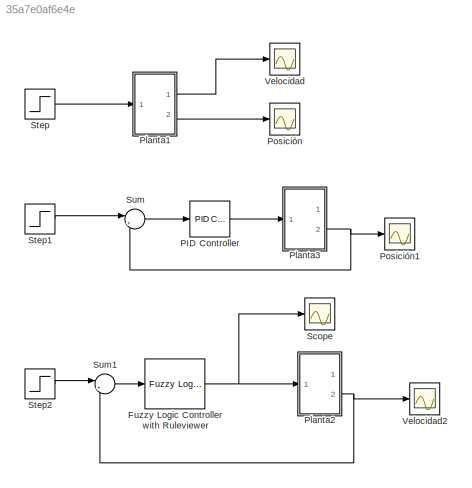
MODEL slx_35a7e0af6e4e
KIND model
CONFIG AbsTol = auto
CONFIG EnableMultiTasking = on
CONFIG FixedStep = auto
CONFIG MaxStep = 0.2
CONFIG MinStep = auto
CONFIG RelTol = 1e-3
CONFIG SampleTimeConstraint = Unconstrained
CONFIG Solver = ode23
CONFIG SolverName = ode23
CONFIG StartTime = 0.0
CONFIG StopTime = 100
BLOCK [Reference] Fuzzy Logic Controller with Ruleviewer  REF=fuzblock/Fuzzy Logic   (lib defined in mdl_858b3b3e7478)
Controller 
with Ruleviewer
  Ports = [1, 1]
  SourceBlock = fuzblock/Fuzzy Logic \nController \nwith Ruleviewer
  SourceProductBaseCode = FL
  SourceProductName = Fuzzy Logic Toolbox
  SourceType = FIS
BLOCK [Reference] PID Controller  REF=simulink/Continuous/PID Controller
  Ports = [1, 1]
  SourceBlock = simulink/Continuous/PID Controller
  SourceProductBaseCode = SL
  SourceProductName = Simulink
  SourceType = PID 1dof
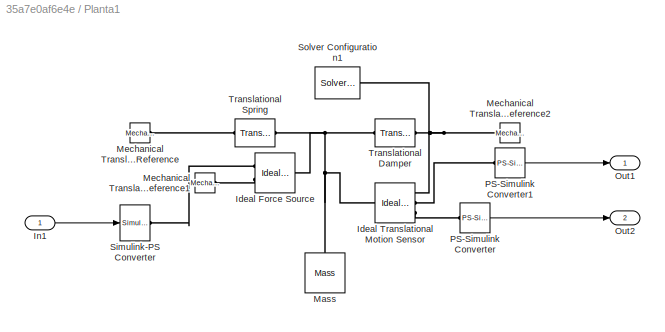
BLOCK [SubSystem] Planta1
  Ports = [1, 2]
  RequestExecContextInheritance = off
  Variant = off
BLOCK [Reference] Planta1/Ideal Force Source  REF=fl_lib/Mechanical/Mechanical Sources/Ideal Force Source
  Ports = [0, 0, 0, 0, 0, 1, 2]
  SourceBlock = fl_lib/Mechanical/Mechanical Sources/Ideal Force Source
  SourceProductBaseCode = SS
  SourceProductName = Simscape
  SourceType = Ideal Force Source
BLOCK [Reference] Planta1/Ideal Translational Motion Sensor  REF=fl_lib/Mechanical/Mechanical Sensors/Ideal Translational
Motion Sensor
  Ports = [0, 0, 0, 0, 0, 1, 3]
  SourceBlock = fl_lib/Mechanical/Mechanical Sensors/Ideal Translational\nMotion Sensor
  SourceProductBaseCode = SS
  SourceProductName = Simscape
  SourceType = Ideal Translational\nMotion Sensor
BLOCK [Inport] Planta1/In1
  IconDisplay = Port number
BLOCK [Reference] Planta1/Mass  REF=fl_lib/Mechanical/Translational
Elements/Mass
  Ports = [0, 0, 0, 0, 0, 1]
  SourceBlock = fl_lib/Mechanical/Translational\nElements/Mass
  SourceProductBaseCode = SS
  SourceProductName = Simscape
  SourceType = Mass
BLOCK [Reference] Planta1/Mechanical Translational Reference  REF=fl_lib/Mechanical/Translational
Elements/Mechanical
Translational
Reference
  Ports = [0, 0, 0, 0, 0, 1]
  SourceBlock = fl_lib/Mechanical/Translational\nElements/Mechanical\nTranslational\nReference
  SourceProductBaseCode = SS
  SourceProductName = Simscape
  SourceType = Mechanical\nTranslational\nReference
BLOCK [Reference] Planta1/Mechanical Translational Reference1  REF=fl_lib/Mechanical/Translational
Elements/Mechanical
Translational
Reference
  Ports = [0, 0, 0, 0, 0, 1]
  SourceBlock = fl_lib/Mechanical/Translational\nElements/Mechanical\nTranslational\nReference
  SourceProductBaseCode = SS
  SourceProductName = Simscape
  SourceType = Mechanical\nTranslational\nReference
BLOCK [Reference] Planta1/Mechanical Translational Reference2  REF=fl_lib/Mechanical/Translational
Elements/Mechanical
Translational
Reference
  Ports = [0, 0, 0, 0, 0, 1]
  SourceBlock = fl_lib/Mechanical/Translational\nElements/Mechanical\nTranslational\nReference
  SourceProductBaseCode = SS
  SourceProductName = Simscape
  SourceType = Mechanical\nTranslational\nReference
BLOCK [Outport] Planta1/Out1
  IconDisplay = Port number
BLOCK [Outport] Planta1/Out2
  IconDisplay = Port number
  Port = 2
BLOCK [Reference] Planta1/PS-Simulink Converter  REF=nesl_utility/PS-Simulink
Converter
  Ports = [0, 1, 0, 0, 0, 1]
  SourceBlock = nesl_utility/PS-Simulink\nConverter
  SourceProductBaseCode = SS
  SourceProductName = Simscape
  SourceType = PS-Simulink\nConverter
BLOCK [Reference] Planta1/PS-Simulink Converter1  REF=nesl_utility/PS-Simulink
Converter
  Ports = [0, 1, 0, 0, 0, 1]
  SourceBlock = nesl_utility/PS-Simulink\nConverter
  SourceProductBaseCode = SS
  SourceProductName = Simscape
  SourceType = PS-Simulink\nConverter
BLOCK [Reference] Planta1/Simulink-PS Converter  REF=nesl_utility/Simulink-PS
Converter
  Ports = [1, 0, 0, 0, 0, 0, 1]
  SourceBlock = nesl_utility/Simulink-PS\nConverter
  SourceProductBaseCode = SS
  SourceProductName = Simscape
  SourceType = Simulink-PS\nConverter
BLOCK [Reference] Planta1/Solver Configuration1  REF=nesl_utility/Solver
Configuration
  Ports = [0, 0, 0, 0, 0, 0, 1]
  SourceBlock = nesl_utility/Solver\nConfiguration
  SourceProductBaseCode = SS
  SourceProductName = Simscape
  SourceType = Solver\nConfiguration
BLOCK [Reference] Planta1/Translational Damper  REF=fl_lib/Mechanical/Translational
Elements/Translational Damper
  Ports = [0, 0, 0, 0, 0, 1, 1]
  SourceBlock = fl_lib/Mechanical/Translational\nElements/Translational Damper
  SourceProductBaseCode = SS
  SourceProductName = Simscape
  SourceType = Translational Damper
BLOCK [Reference] Planta1/Translational Spring  REF=fl_lib/Mechanical/Translational
Elements/Translational Spring
  Ports = [0, 0, 0, 0, 0, 1, 1]
  SourceBlock = fl_lib/Mechanical/Translational\nElements/Translational Spring
  SourceProductBaseCode = SS
  SourceProductName = Simscape
  SourceType = Translational Spring
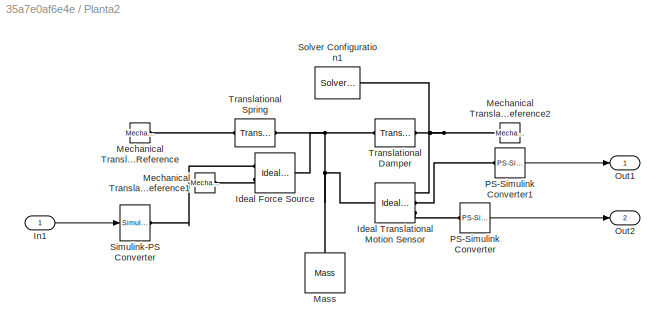
BLOCK [SubSystem] Planta2
  Ports = [1, 2]
  RequestExecContextInheritance = off
  Variant = off
BLOCK [Reference] Planta2/Ideal Force Source  REF=fl_lib/Mechanical/Mechanical Sources/Ideal Force Source
  Ports = [0, 0, 0, 0, 0, 1, 2]
  SourceBlock = fl_lib/Mechanical/Mechanical Sources/Ideal Force Source
  SourceProductBaseCode = SS
  SourceProductName = Simscape
  SourceType = Ideal Force Source
BLOCK [Reference] Planta2/Ideal Translational Motion Sensor  REF=fl_lib/Mechanical/Mechanical Sensors/Ideal Translational
Motion Sensor
  Ports = [0, 0, 0, 0, 0, 1, 3]
  SourceBlock = fl_lib/Mechanical/Mechanical Sensors/Ideal Translational\nMotion Sensor
  SourceProductBaseCode = SS
  SourceProductName = Simscape
  SourceType = Ideal Translational\nMotion Sensor
BLOCK [Inport] Planta2/In1
  IconDisplay = Port number
BLOCK [Reference] Planta2/Mass  REF=fl_lib/Mechanical/Translational
Elements/Mass
  Ports = [0, 0, 0, 0, 0, 1]
  SourceBlock = fl_lib/Mechanical/Translational\nElements/Mass
  SourceProductBaseCode = SS
  SourceProductName = Simscape
  SourceType = Mass
BLOCK [Reference] Planta2/Mechanical Translational Reference  REF=fl_lib/Mechanical/Translational
Elements/Mechanical
Translational
Reference
  Ports = [0, 0, 0, 0, 0, 1]
  SourceBlock = fl_lib/Mechanical/Translational\nElements/Mechanical\nTranslational\nReference
  SourceProductBaseCode = SS
  SourceProductName = Simscape
  SourceType = Mechanical\nTranslational\nReference
BLOCK [Reference] Planta2/Mechanical Translational Reference1  REF=fl_lib/Mechanical/Translational
Elements/Mechanical
Translational
Reference
  Ports = [0, 0, 0, 0, 0, 1]
  SourceBlock = fl_lib/Mechanical/Translational\nElements/Mechanical\nTranslational\nReference
  SourceProductBaseCode = SS
  SourceProductName = Simscape
  SourceType = Mechanical\nTranslational\nReference
BLOCK [Reference] Planta2/Mechanical Translational Reference2  REF=fl_lib/Mechanical/Translational
Elements/Mechanical
Translational
Reference
  Ports = [0, 0, 0, 0, 0, 1]
  SourceBlock = fl_lib/Mechanical/Translational\nElements/Mechanical\nTranslational\nReference
  SourceProductBaseCode = SS
  SourceProductName = Simscape
  SourceType = Mechanical\nTranslational\nReference
BLOCK [Outport] Planta2/Out1
  IconDisplay = Port number
BLOCK [Outport] Planta2/Out2
  IconDisplay = Port number
  Port = 2
BLOCK [Reference] Planta2/PS-Simulink Converter  REF=nesl_utility/PS-Simulink
Converter
  Ports = [0, 1, 0, 0, 0, 1]
  SourceBlock = nesl_utility/PS-Simulink\nConverter
  SourceProductBaseCode = SS
  SourceProductName = Simscape
  SourceType = PS-Simulink\nConverter
BLOCK [Reference] Planta2/PS-Simulink Converter1  REF=nesl_utility/PS-Simulink
Converter
  Ports = [0, 1, 0, 0, 0, 1]
  SourceBlock = nesl_utility/PS-Simulink\nConverter
  SourceProductBaseCode = SS
  SourceProductName = Simscape
  SourceType = PS-Simulink\nConverter
BLOCK [Reference] Planta2/Simulink-PS Converter  REF=nesl_utility/Simulink-PS
Converter
  Ports = [1, 0, 0, 0, 0, 0, 1]
  SourceBlock = nesl_utility/Simulink-PS\nConverter
  SourceProductBaseCode = SS
  SourceProductName = Simscape
  SourceType = Simulink-PS\nConverter
BLOCK [Reference] Planta2/Solver Configuration1  REF=nesl_utility/Solver
Configuration
  Ports = [0, 0, 0, 0, 0, 0, 1]
  SourceBlock = nesl_utility/Solver\nConfiguration
  SourceProductBaseCode = SS
  SourceProductName = Simscape
  SourceType = Solver\nConfiguration
BLOCK [Reference] Planta2/Translational Damper  REF=fl_lib/Mechanical/Translational
Elements/Translational Damper
  Ports = [0, 0, 0, 0, 0, 1, 1]
  SourceBlock = fl_lib/Mechanical/Translational\nElements/Translational Damper
  SourceProductBaseCode = SS
  SourceProductName = Simscape
  SourceType = Translational Damper
BLOCK [Reference] Planta2/Translational Spring  REF=fl_lib/Mechanical/Translational
Elements/Translational Spring
  Ports = [0, 0, 0, 0, 0, 1, 1]
  SourceBlock = fl_lib/Mechanical/Translational\nElements/Translational Spring
  SourceProductBaseCode = SS
  SourceProductName = Simscape
  SourceType = Translational Spring
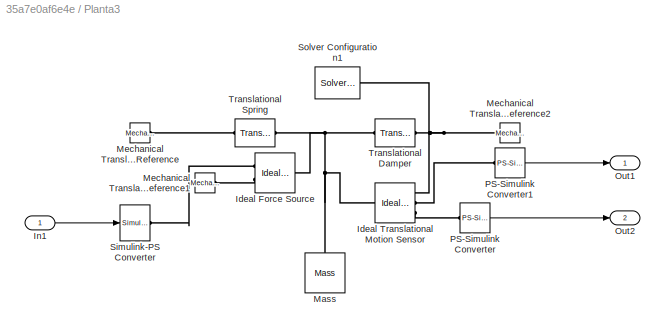
BLOCK [SubSystem] Planta3
  Ports = [1, 2]
  RequestExecContextInheritance = off
  Variant = off
BLOCK [Reference] Planta3/Ideal Force Source  REF=fl_lib/Mechanical/Mechanical Sources/Ideal Force Source
  Ports = [0, 0, 0, 0, 0, 1, 2]
  SourceBlock = fl_lib/Mechanical/Mechanical Sources/Ideal Force Source
  SourceProductBaseCode = SS
  SourceProductName = Simscape
  SourceType = Ideal Force Source
BLOCK [Reference] Planta3/Ideal Translational Motion Sensor  REF=fl_lib/Mechanical/Mechanical Sensors/Ideal Translational
Motion Sensor
  Ports = [0, 0, 0, 0, 0, 1, 3]
  SourceBlock = fl_lib/Mechanical/Mechanical Sensors/Ideal Translational\nMotion Sensor
  SourceProductBaseCode = SS
  SourceProductName = Simscape
  SourceType = Ideal Translational\nMotion Sensor
BLOCK [Inport] Planta3/In1
  IconDisplay = Port number
BLOCK [Reference] Planta3/Mass  REF=fl_lib/Mechanical/Translational
Elements/Mass
  Ports = [0, 0, 0, 0, 0, 1]
  SourceBlock = fl_lib/Mechanical/Translational\nElements/Mass
  SourceProductBaseCode = SS
  SourceProductName = Simscape
  SourceType = Mass
BLOCK [Reference] Planta3/Mechanical Translational Reference  REF=fl_lib/Mechanical/Translational
Elements/Mechanical
Translational
Reference
  Ports = [0, 0, 0, 0, 0, 1]
  SourceBlock = fl_lib/Mechanical/Translational\nElements/Mechanical\nTranslational\nReference
  SourceProductBaseCode = SS
  SourceProductName = Simscape
  SourceType = Mechanical\nTranslational\nReference
BLOCK [Reference] Planta3/Mechanical Translational Reference1  REF=fl_lib/Mechanical/Translational
Elements/Mechanical
Translational
Reference
  Ports = [0, 0, 0, 0, 0, 1]
  SourceBlock = fl_lib/Mechanical/Translational\nElements/Mechanical\nTranslational\nReference
  SourceProductBaseCode = SS
  SourceProductName = Simscape
  SourceType = Mechanical\nTranslational\nReference
BLOCK [Reference] Planta3/Mechanical Translational Reference2  REF=fl_lib/Mechanical/Translational
Elements/Mechanical
Translational
Reference
  Ports = [0, 0, 0, 0, 0, 1]
  SourceBlock = fl_lib/Mechanical/Translational\nElements/Mechanical\nTranslational\nReference
  SourceProductBaseCode = SS
  SourceProductName = Simscape
  SourceType = Mechanical\nTranslational\nReference
BLOCK [Outport] Planta3/Out1
  IconDisplay = Port number
BLOCK [Outport] Planta3/Out2
  IconDisplay = Port number
  Port = 2
BLOCK [Reference] Planta3/PS-Simulink Converter  REF=nesl_utility/PS-Simulink
Converter
  Ports = [0, 1, 0, 0, 0, 1]
  SourceBlock = nesl_utility/PS-Simulink\nConverter
  SourceProductBaseCode = SS
  SourceProductName = Simscape
  SourceType = PS-Simulink\nConverter
BLOCK [Reference] Planta3/PS-Simulink Converter1  REF=nesl_utility/PS-Simulink
Converter
  Ports = [0, 1, 0, 0, 0, 1]
  SourceBlock = nesl_utility/PS-Simulink\nConverter
  SourceProductBaseCode = SS
  SourceProductName = Simscape
  SourceType = PS-Simulink\nConverter
BLOCK [Reference] Planta3/Simulink-PS Converter  REF=nesl_utility/Simulink-PS
Converter
  Ports = [1, 0, 0, 0, 0, 0, 1]
  SourceBlock = nesl_utility/Simulink-PS\nConverter
  SourceProductBaseCode = SS
  SourceProductName = Simscape
  SourceType = Simulink-PS\nConverter
BLOCK [Reference] Planta3/Solver Configuration1  REF=nesl_utility/Solver
Configuration
  Ports = [0, 0, 0, 0, 0, 0, 1]
  SourceBlock = nesl_utility/Solver\nConfiguration
  SourceProductBaseCode = SS
  SourceProductName = Simscape
  SourceType = Solver\nConfiguration
BLOCK [Reference] Planta3/Translational Damper  REF=fl_lib/Mechanical/Translational
Elements/Translational Damper
  Ports = [0, 0, 0, 0, 0, 1, 1]
  SourceBlock = fl_lib/Mechanical/Translational\nElements/Translational Damper
  SourceProductBaseCode = SS
  SourceProductName = Simscape
  SourceType = Translational Damper
BLOCK [Reference] Planta3/Translational Spring  REF=fl_lib/Mechanical/Translational
Elements/Translational Spring
  Ports = [0, 0, 0, 0, 0, 1, 1]
  SourceBlock = fl_lib/Mechanical/Translational\nElements/Translational Spring
  SourceProductBaseCode = SS
  SourceProductName = Simscape
  SourceType = Translational Spring
BLOCK [Scope] Posición
  NumInputPorts = 1
  Ports = [1]
  ScopeSpecificationString = Simulink.scopes.TimeScopeBlockCfg('CurrentConfiguration', extmgr.ConfigurationSet(extmgr.Configuration('Core','General UI',true),extmgr.Configuration('Core','Source UI',true),extmgr.Configuration('Sources','WiredSimulink',true,'DataLoggingVariableName','ScopeData1'),extmgr.Configuration('Visuals','Time Domain',true,'SerializedDisplays',{struct('MinYLimReal','-0.65201','MaxYLimReal','5.86807','YLab...<+1368ch>
BLOCK [Scope] Posición1
  NumInputPorts = 1
  Ports = [1]
  ScopeSpecificationString = Simulink.scopes.TimeScopeBlockCfg('CurrentConfiguration', extmgr.ConfigurationSet(extmgr.Configuration('Core','General UI',true),extmgr.Configuration('Core','Source UI',true),extmgr.Configuration('Sources','WiredSimulink',true,'DataLoggingVariableName','ScopeData3'),extmgr.Configuration('Visuals','Time Domain',true,'SerializedDisplays',{struct('MinYLimReal','-0.1324','MaxYLimReal','1.19161','YLabe...<+1395ch>
BLOCK [Scope] Scope
  NumInputPorts = 1
  Ports = [1]
  ScopeSpecificationString = Simulink.scopes.TimeScopeBlockCfg('CurrentConfiguration', extmgr.ConfigurationSet(extmgr.Configuration('Core','General UI',true),extmgr.Configuration('Core','Source UI',true),extmgr.Configuration('Sources','WiredSimulink',true,'DataLoggingVariableName','ScopeData4'),extmgr.Configuration('Visuals','Time Domain',true,'SerializedDisplays',{struct('MinYLimReal','-2.80887','MaxYLimReal','25.27982','YLa...<+1403ch>
BLOCK [Step] Step
  SampleTime = 0
BLOCK [Step] Step1
  SampleTime = 0
BLOCK [Step] Step2
  After = 60
  SampleTime = 0
  Time = 2
BLOCK [Sum] Sum
  IconShape = round
  InputSameDT = off
  Inputs = |+-
  OutDataTypeStr = Inherit: Inherit via internal rule
  Ports = [2, 1]
  SaturateOnIntegerOverflow = off
BLOCK [Sum] Sum1
  IconShape = round
  InputSameDT = off
  Inputs = |+-
  OutDataTypeStr = Inherit: Inherit via internal rule
  Ports = [2, 1]
  SaturateOnIntegerOverflow = off
BLOCK [Scope] Velocidad
  NumInputPorts = 1
  Ports = [1]
  ScopeSpecificationString = Simulink.scopes.TimeScopeBlockCfg('CurrentConfiguration', extmgr.ConfigurationSet(extmgr.Configuration('Core','General UI',true),extmgr.Configuration('Core','Source UI',true),extmgr.Configuration('Sources','WiredSimulink',true),extmgr.Configuration('Visuals','Time Domain',true,'SerializedDisplays',{struct('MinYLimReal','-0.05597','MaxYLimReal','0.36444','YLabelReal','','MinYLimMag','0.00000','MaxY...<+1329ch>
BLOCK [Scope] Velocidad2
  NumInputPorts = 1
  Ports = [1]
  ScopeSpecificationString = Simulink.scopes.TimeScopeBlockCfg('CurrentConfiguration', extmgr.ConfigurationSet(extmgr.Configuration('Core','General UI',true),extmgr.Configuration('Core','Source UI',true),extmgr.Configuration('Sources','WiredSimulink',true,'DataLoggingVariableName','ScopeData2'),extmgr.Configuration('Visuals','Time Domain',true,'SerializedDisplays',{struct('MinYLimReal','-8.01607','MaxYLimReal','72.14462','YLa...<+1426ch>
NET Fuzzy Logic Controller with Ruleviewer:1 -> Planta2:1, Scope:1
LINE PID Controller:1 -> Planta3:1
LINE Planta1/In1:1 -> Planta1/Simulink-PS Converter:1
LINE Planta1/PS-Simulink Converter1:1 -> Planta1/Out1:1
LINE Planta1/PS-Simulink Converter:1 -> Planta1/Out2:1
LINE Planta1:1 -> Velocidad:1
LINE Planta1:2 -> Posición:1
LINE Planta2/In1:1 -> Planta2/Simulink-PS Converter:1
LINE Planta2/PS-Simulink Converter1:1 -> Planta2/Out1:1
LINE Planta2/PS-Simulink Converter:1 -> Planta2/Out2:1
NET Planta2:2 -> Sum1:2, Velocidad2:1
LINE Planta3/In1:1 -> Planta3/Simulink-PS Converter:1
LINE Planta3/PS-Simulink Converter1:1 -> Planta3/Out1:1
LINE Planta3/PS-Simulink Converter:1 -> Planta3/Out2:1
NET Planta3:2 -> Posición1:1, Sum:2
LINE Step1:1 -> Sum:1
LINE Step2:1 -> Sum1:1
LINE Step:1 -> Planta1:1
LINE Sum1:1 -> Fuzzy Logic Controller with Ruleviewer:1
LINE Sum:1 -> PID Controller:1
PNET net1: Planta1/Ideal Force Source:LConn1 -- Planta1/Ideal Translational Motion Sensor:LConn1 -- Planta1/Mass:LConn1 -- Planta1/Translational Damper:LConn1 -- Planta1/Translational Spring:LConn1
PLINE Planta1/Ideal Force Source:RConn1 -- Planta1/Simulink-PS Converter:RConn1
PLINE Planta1/Ideal Force Source:RConn2 -- Planta1/Mechanical Translational Reference1:LConn1
PNET net2: Planta1/Ideal Translational Motion Sensor:RConn1 -- Planta1/Mechanical Translational Reference2:LConn1 -- Planta1/Solver Configuration1:RConn1 -- Planta1/Translational Damper:RConn1
PLINE Planta1/Ideal Translational Motion Sensor:RConn2 -- Planta1/PS-Simulink Converter1:LConn1
PLINE Planta1/Ideal Translational Motion Sensor:RConn3 -- Planta1/PS-Simulink Converter:LConn1
PLINE Planta1/Mechanical Translational Reference:LConn1 -- Planta1/Translational Spring:RConn1
PNET net3: Planta2/Ideal Force Source:LConn1 -- Planta2/Ideal Translational Motion Sensor:LConn1 -- Planta2/Mass:LConn1 -- Planta2/Translational Damper:LConn1 -- Planta2/Translational Spring:LConn1
PLINE Planta2/Ideal Force Source:RConn1 -- Planta2/Simulink-PS Converter:RConn1
PLINE Planta2/Ideal Force Source:RConn2 -- Planta2/Mechanical Translational Reference1:LConn1
PNET net4: Planta2/Ideal Translational Motion Sensor:RConn1 -- Planta2/Mechanical Translational Reference2:LConn1 -- Planta2/Solver Configuration1:RConn1 -- Planta2/Translational Damper:RConn1
PLINE Planta2/Ideal Translational Motion Sensor:RConn2 -- Planta2/PS-Simulink Converter1:LConn1
PLINE Planta2/Ideal Translational Motion Sensor:RConn3 -- Planta2/PS-Simulink Converter:LConn1
PLINE Planta2/Mechanical Translational Reference:LConn1 -- Planta2/Translational Spring:RConn1
PNET net5: Planta3/Ideal Force Source:LConn1 -- Planta3/Ideal Translational Motion Sensor:LConn1 -- Planta3/Mass:LConn1 -- Planta3/Translational Damper:LConn1 -- Planta3/Translational Spring:LConn1
PLINE Planta3/Ideal Force Source:RConn1 -- Planta3/Simulink-PS Converter:RConn1
PLINE Planta3/Ideal Force Source:RConn2 -- Planta3/Mechanical Translational Reference1:LConn1
PNET net6: Planta3/Ideal Translational Motion Sensor:RConn1 -- Planta3/Mechanical Translational Reference2:LConn1 -- Planta3/Solver Configuration1:RConn1 -- Planta3/Translational Damper:RConn1
PLINE Planta3/Ideal Translational Motion Sensor:RConn2 -- Planta3/PS-Simulink Converter1:LConn1
PLINE Planta3/Ideal Translational Motion Sensor:RConn3 -- Planta3/PS-Simulink Converter:LConn1
PLINE Planta3/Mechanical Translational Reference:LConn1 -- Planta3/Translational Spring:RConn1
note: NET lines group one-source signal fan-out (src -> all destinations, sorted); 1:1 wires keep LINE; PNET lines group multi-terminal physical nets as a canonical sorted terminal list (undirected conserving connections); 2-terminal nets keep the pairwise PLINE form
